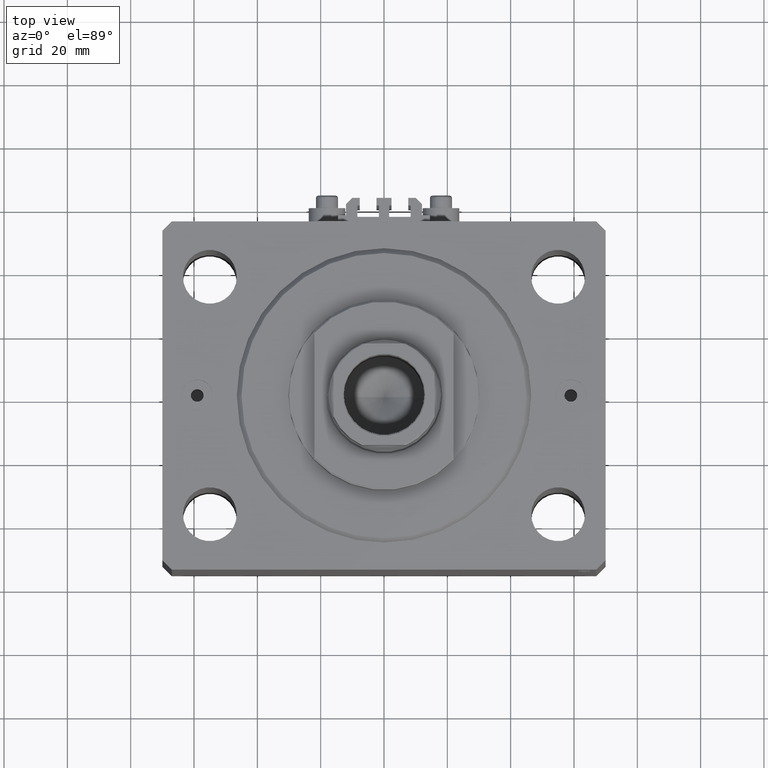
[diagram: clean part render]
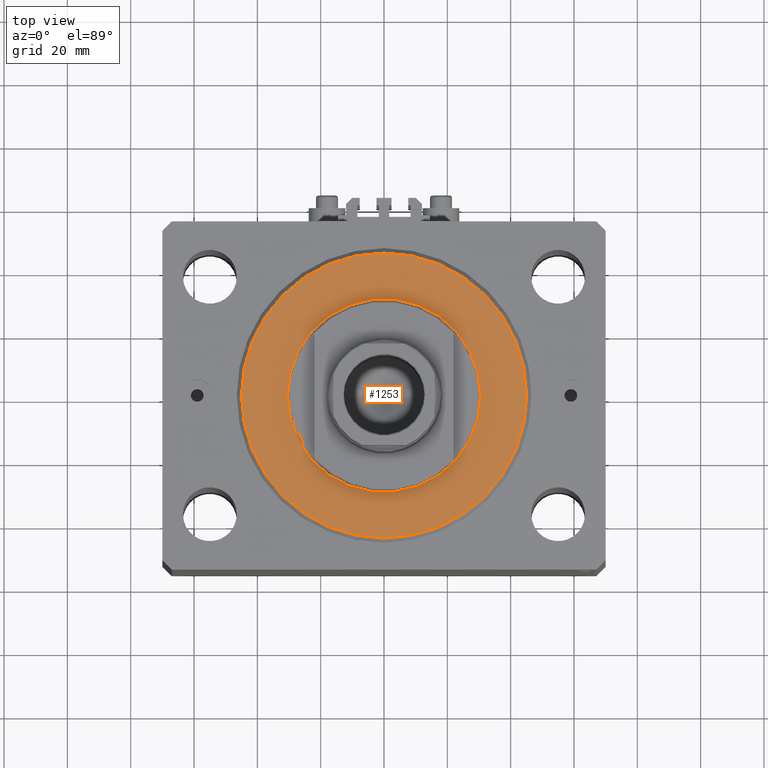
[diagram: same view with one face highlighted and labeled with its STEP entity id]
A machine part, top view. The second image highlights one B-rep face of the part: STEP entity #1253.
In plain terms, the highlighted planar face has unit normal (0, 0, -1).
Its self-contained STEP definition (entity closure, byte-faithful):
#121 = ORIENTED_EDGE ( 'NONE', *, *, #5396, .T. ) ;
#663 = DIRECTION ( 'NONE',  ( 0.000000000000000000, 0.000000000000000000, 1.000000000000000000 ) ) ;
#1253 = ADVANCED_FACE ( 'NONE', ( #35808, #46789 ), #39613, .F. ) ;
#1807 = AXIS2_PLACEMENT_3D ( 'NONE', #41835, #27265, #27749 ) ;
#3101 = CARTESIAN_POINT ( 'NONE',  ( 0.000000000000000000, 0.000000000000000000, 0.000000000000000000 ) ) ;
#3412 = ORIENTED_EDGE ( 'NONE', *, *, #37396, .T. ) ;
#3914 = CIRCLE ( 'NONE', #33624, 30.50000000000000000 ) ;
#4101 = AXIS2_PLACEMENT_3D ( 'NONE', #5207, #26451, #41029 ) ;
#4393 = VERTEX_POINT ( 'NONE', #19506 ) ;
#4678 = CARTESIAN_POINT ( 'NONE',  ( 0.000000000000000000, 0.000000000000000000, 0.000000000000000000 ) ) ;
#5207 = CARTESIAN_POINT ( 'NONE',  ( 0.000000000000000000, 0.000000000000000000, 0.000000000000000000 ) ) ;
#5396 = EDGE_CURVE ( 'NONE', #4393, #6386, #3914, .T. ) ;
#6386 = VERTEX_POINT ( 'NONE', #43892 ) ;
#6459 = VERTEX_POINT ( 'NONE', #42184 ) ;
#7312 = AXIS2_PLACEMENT_3D ( 'NONE', #4678, #37849, #26607 ) ;
#7782 = ORIENTED_EDGE ( 'NONE', *, *, #18251, .T. ) ;
#10007 = DIRECTION ( 'NONE',  ( 0.000000000000000000, 0.000000000000000000, 1.000000000000000000 ) ) ;
#18251 = EDGE_CURVE ( 'NONE', #6386, #4393, #34749, .T. ) ;
#19506 = CARTESIAN_POINT ( 'NONE',  ( -30.50000000000000000, 3.735172737399427541E-15, 2.168404344971008868E-16 ) ) ;
#20017 = CIRCLE ( 'NONE', #4101, 45.00000000000000000 ) ;
#22373 = CIRCLE ( 'NONE', #1807, 45.00000000000000000 ) ;
#22968 = ORIENTED_EDGE ( 'NONE', *, *, #37008, .T. ) ;
#24198 = EDGE_LOOP ( 'NONE', ( #7782, #121 ) ) ;
#25648 = AXIS2_PLACEMENT_3D ( 'NONE', #3101, #10007, #31747 ) ;
#26451 = DIRECTION ( 'NONE',  ( -0.000000000000000000, -0.000000000000000000, -1.000000000000000000 ) ) ;
#26607 = DIRECTION ( 'NONE',  ( 1.000000000000000000, 0.000000000000000000, 0.000000000000000000 ) ) ;
#27265 = DIRECTION ( 'NONE',  ( -0.000000000000000000, -0.000000000000000000, -1.000000000000000000 ) ) ;
#27749 = DIRECTION ( 'NONE',  ( 1.000000000000000000, 0.000000000000000000, 0.000000000000000000 ) ) ;
#28377 = VERTEX_POINT ( 'NONE', #44195 ) ;
#31747 = DIRECTION ( 'NONE',  ( 1.000000000000000000, 0.000000000000000000, -0.000000000000000000 ) ) ;
#33624 = AXIS2_PLACEMENT_3D ( 'NONE', #45056, #663, #41015 ) ;
#34749 = CIRCLE ( 'NONE', #7312, 30.50000000000000000 ) ;
#35808 = FACE_BOUND ( 'NONE', #24198, .T. ) ;
#37008 = EDGE_CURVE ( 'NONE', #6459, #28377, #20017, .T. ) ;
#37396 = EDGE_CURVE ( 'NONE', #28377, #6459, #22373, .T. ) ;
#37849 = DIRECTION ( 'NONE',  ( 0.000000000000000000, 0.000000000000000000, 1.000000000000000000 ) ) ;
#39613 = PLANE ( 'NONE',  #25648 ) ;
#41015 = DIRECTION ( 'NONE',  ( 1.000000000000000000, 0.000000000000000000, 0.000000000000000000 ) ) ;
#41029 = DIRECTION ( 'NONE',  ( 1.000000000000000000, 0.000000000000000000, 0.000000000000000000 ) ) ;
#41835 = CARTESIAN_POINT ( 'NONE',  ( 0.000000000000000000, 0.000000000000000000, 0.000000000000000000 ) ) ;
#42184 = CARTESIAN_POINT ( 'NONE',  ( 45.00000000000000000, 0.000000000000000000, 0.000000000000000000 ) ) ;
#43892 = CARTESIAN_POINT ( 'NONE',  ( 30.50000000000000000, 0.000000000000000000, 2.168404344971008868E-16 ) ) ;
#44195 = CARTESIAN_POINT ( 'NONE',  ( -45.00000000000000000, 5.602759106099140917E-15, 0.000000000000000000 ) ) ;
#44626 = EDGE_LOOP ( 'NONE', ( #22968, #3412 ) ) ;
#45056 = CARTESIAN_POINT ( 'NONE',  ( 0.000000000000000000, 0.000000000000000000, 0.000000000000000000 ) ) ;
#46789 = FACE_OUTER_BOUND ( 'NONE', #44626, .T. ) ;